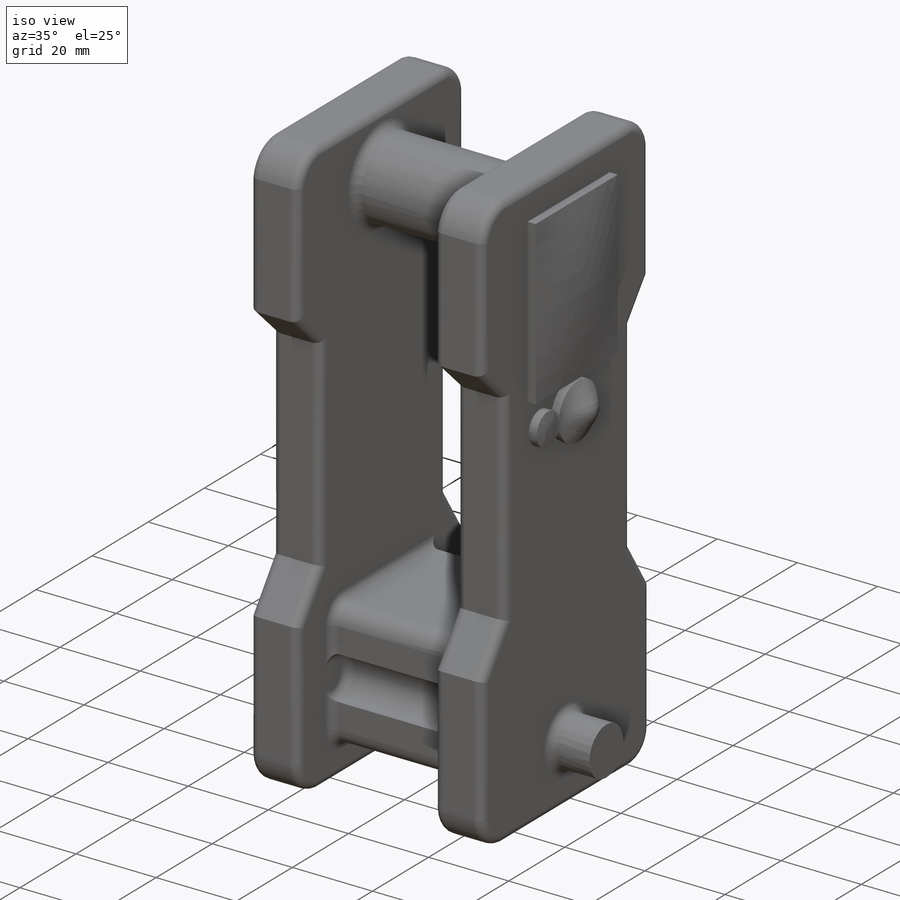
[diagram: iso view]
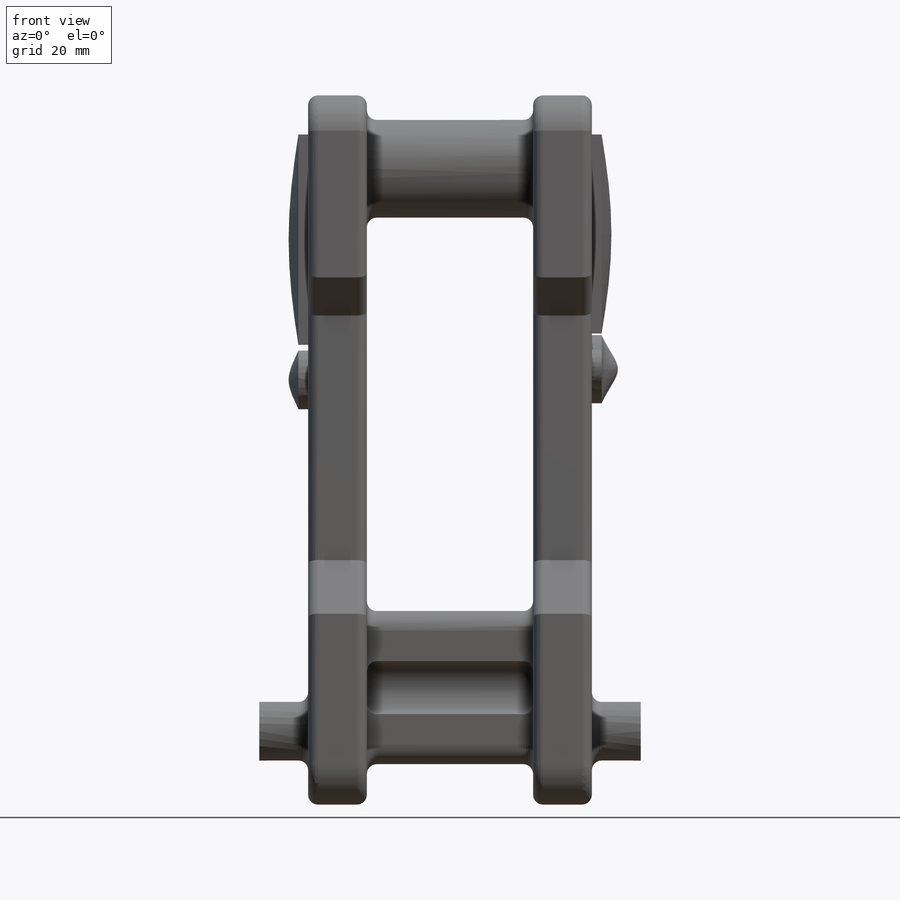
[diagram: front view]
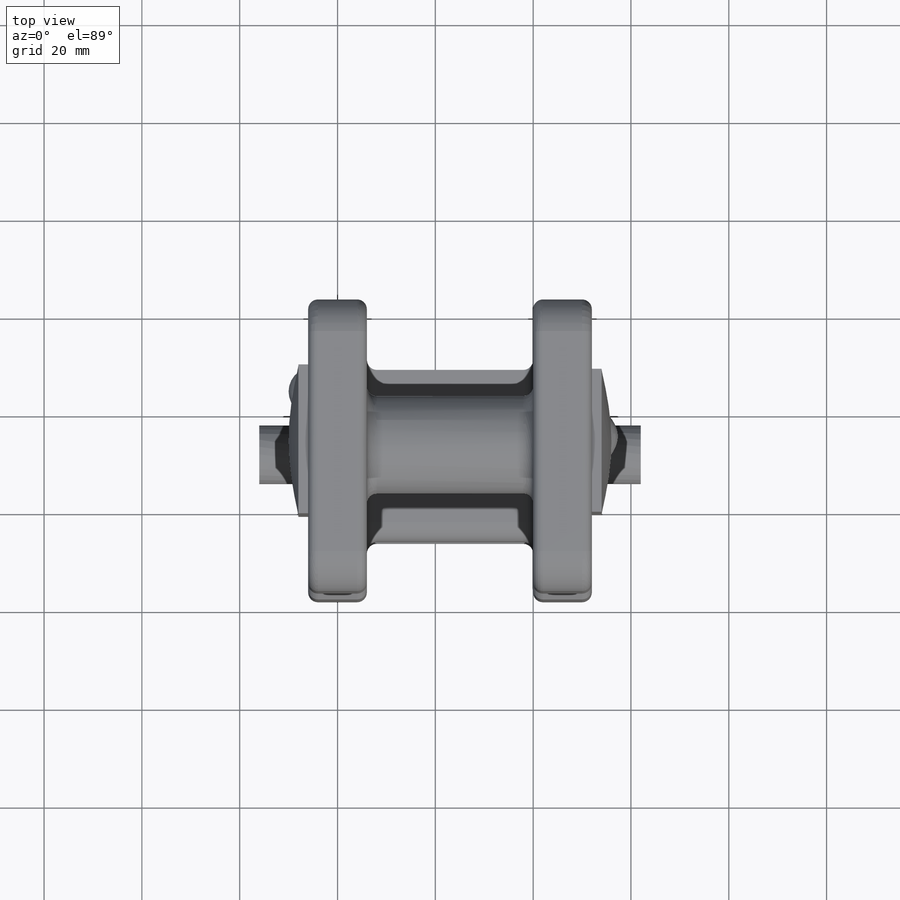
[diagram: top view]
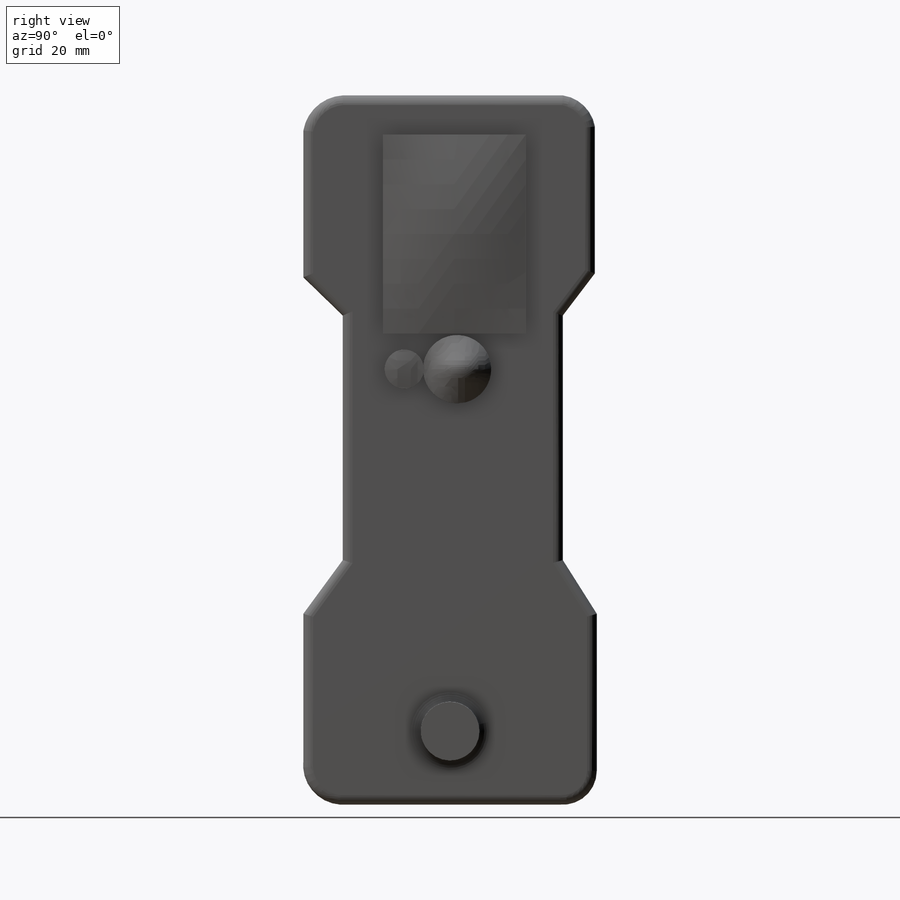
[diagram: right view]
SOLIDWORKS PART (.sldprt)
format: sldprt  version: not decoded by parser v0  size: 696,832 bytes
history: native  units: mm
features: sketch x7, extrude x7, fillet x6, dome x3, material x1, mirror x1 (+11 scaffold rows collapsed)
feature tree (36):
  scaffold x11  (default folders/planes/origin — collapsed)
  material  "Material <not specified>"
  sketch  "Sketch1"  dims[c1.D10=~4.502232mm c1.D1=60.0mm c1.D2=45.0mm c1.D3=50.0mm c1.D4=60.0mm c1.D5=60.0mm c2.D4=30.0mm c2.D5=145.0mm c2.D6=50.0mm c2.D7=50.0mm c2.D8=45.0mm c2.D9=45.0mm c2.D10=12.0mm c2.D11=~13.303925mm c3.D11=90.0deg c4.D11=30.0mm c4.D12=12.0mm c4.D13=~15.038273mm c5.D13=90.0deg c6.D13=30.0mm c6.D14=~30.384226mm]
  extrude  "Boss-Extrude4"  Depth=12mm
  sketch  "Sketch4"  dims[D1=~35.10851mm]
  extrude  "Boss-Extrude6"  Depth=17mm
  mirror  "Mirror7"
  sketch  "Sketch5"  dims[c1.D1=15.0mm c1.D2=~21.419619mm c2.D2=90.0deg c3.D2=30.0mm]
  extrude  "Boss-Extrude7"  Depth=10mm
  sketch  "Sketch6"  dims[D1=15.0mm D2=30.0mm]
  extrude  "Boss-Extrude8"  Depth=10mm
  sketch  "Sketch7"  dims[D1=30.0mm D2=15.0mm]
  extrude  "Boss-Extrude9"  Depth=34mm
  fillet  "Fillet1"  Radius=2mm
  fillet  "Fillet2"  Radius=2mm
  fillet  "Fillet3"  Radius=4mm
  fillet  "Fillet4"  Radius=2mm
  fillet  "Fillet5"  Radius=2mm
  fillet  "Fillet6"  Radius=2mm
  sketch  "Sketch8"  dims[D1=~4.904718mm]
  extrude  "Boss-Extrude10"  Depth=2mm
  sketch  "Sketch9"  dims[D1=5.0mm]
  extrude  "Boss-Extrude13"  Depth=2mm
  dome  "Dome1"
  dome  "Dome2"
  dome  "Dome3"
decode coverage: 20 of 24 modeling features carry decoded parameters
note: ~ marks probable driven/reference dimensions
note: suppression state not decoded; provenance and decode notes live in map.json
